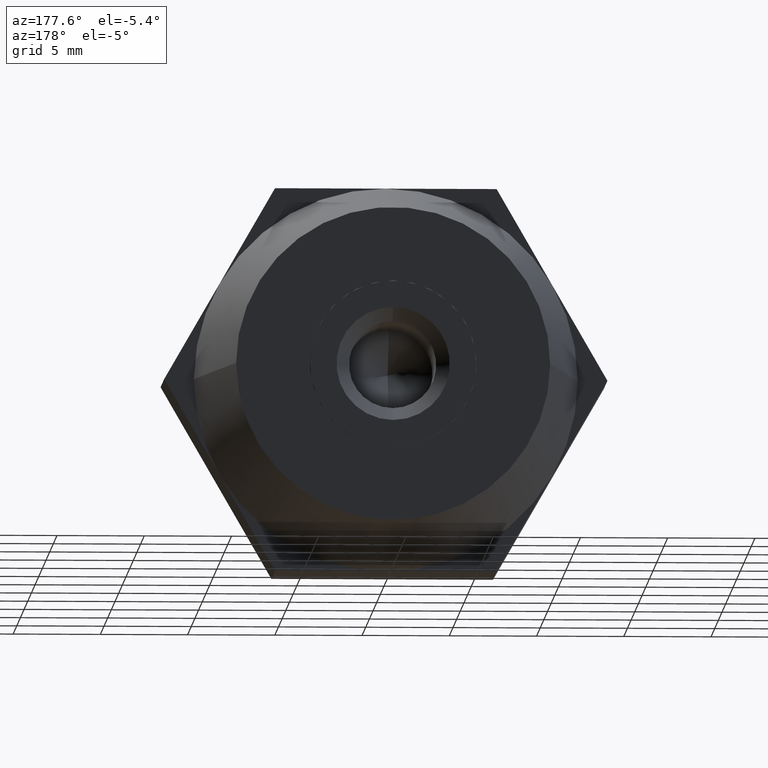
[diagram: clean part render]
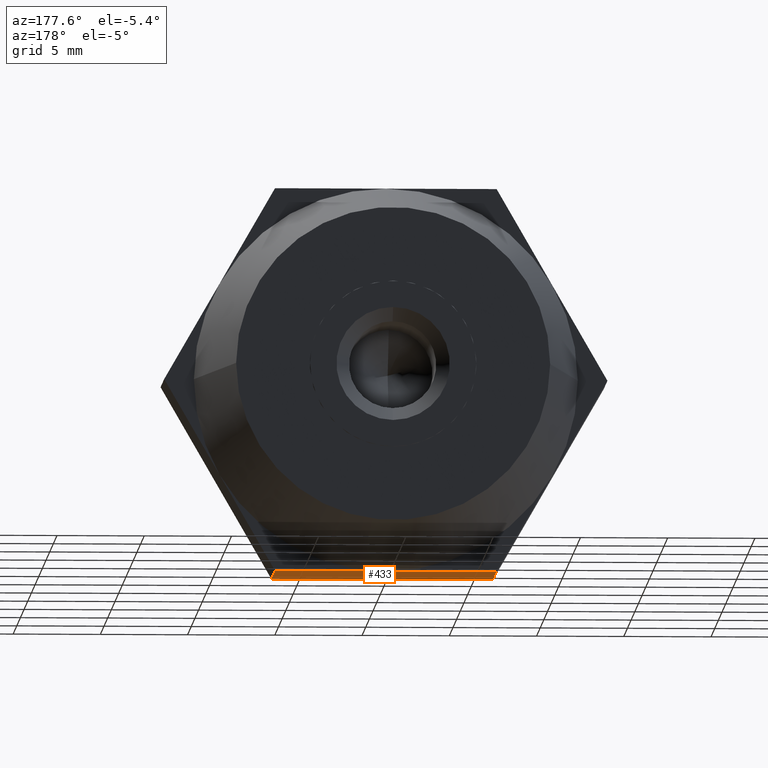
[diagram: same view with one face highlighted and labeled with its STEP entity id]
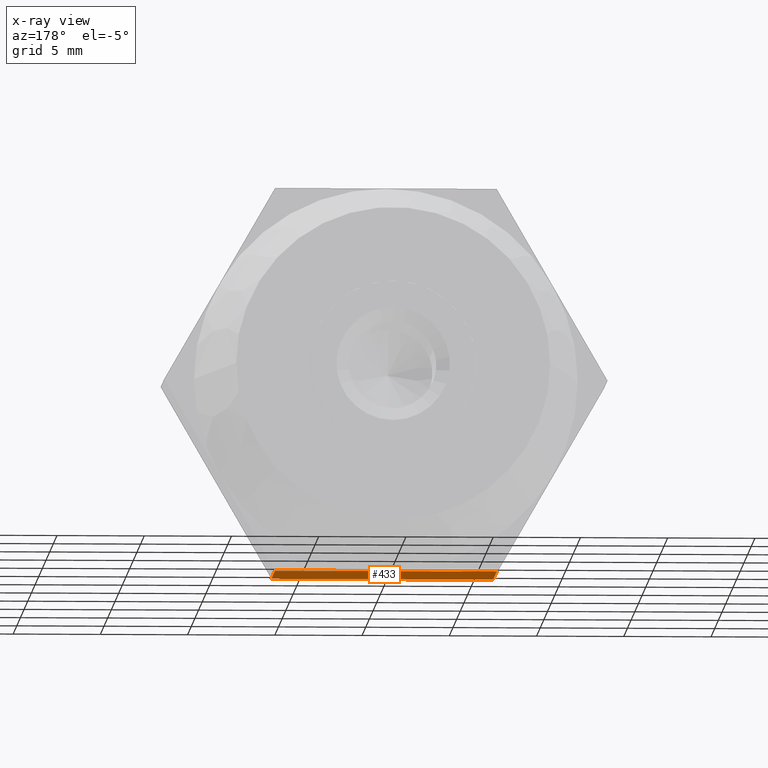
[diagram: x-ray of the same camera — body ghosted, the highlighted face saturated]
A machine part, auxiliary view. The second image highlights one B-rep face of the part: STEP entity #433.
The next image is the same camera in x-ray: the body ghosted, the highlighted face saturated — about 0% of this face is hidden behind the body in this view.
In plain terms, the highlighted planar face has unit normal (0, 0, 1).
Its self-contained STEP definition (entity closure, byte-faithful):
#147 = ORIENTED_EDGE ( 'NONE', *, *, #1886, .T. ) ;
#198 = VERTEX_POINT ( 'NONE', #1966 ) ;
#259 = VERTEX_POINT ( 'NONE', #3182 ) ;
#310 = EDGE_CURVE ( 'NONE', #1385, #1450, #2533, .T. ) ;
#408 = VERTEX_POINT ( 'NONE', #1746 ) ;
#433 = ADVANCED_FACE ( 'NONE', ( #3578 ), #1146, .F. ) ;
#639 = LINE ( 'NONE', #2296, #3765 ) ;
#667 = CARTESIAN_POINT ( 'NONE',  ( 6.350852961085879900, -2.500000000000000000, -11.00000000000000000 ) ) ;
#682 = EDGE_CURVE ( 'NONE', #259, #2449, #639, .T. ) ;
#766 = AXIS2_PLACEMENT_3D ( 'NONE', #2703, #1131, #3271 ) ;
#789 = DIRECTION ( 'NONE',  ( -1.000000000000000000, 0.0000000000000000000, 0.0000000000000000000 ) ) ;
#930 = DIRECTION ( 'NONE',  ( 0.0000000000000000000, -1.000000000000000000, 0.0000000000000000000 ) ) ;
#1000 = VECTOR ( 'NONE', #789, 1000.000000000000000 ) ;
#1018 = ORIENTED_EDGE ( 'NONE', *, *, #1063, .T. ) ;
#1063 = EDGE_CURVE ( 'NONE', #259, #198, #3392, .T. ) ;
#1131 = DIRECTION ( 'NONE',  ( 0.0000000000000000000, 0.0000000000000000000, 1.000000000000000000 ) ) ;
#1146 = PLANE ( 'NONE',  #766 ) ;
#1152 = CARTESIAN_POINT ( 'NONE',  ( 6.350852961085879900, 2.500000000000000000, -11.00000000000000000 ) ) ;
#1225 = LINE ( 'NONE', #1152, #1791 ) ;
#1342 = ORIENTED_EDGE ( 'NONE', *, *, #682, .F. ) ;
#1385 = VERTEX_POINT ( 'NONE', #1724 ) ;
#1417 = DIRECTION ( 'NONE',  ( 0.0000000000000000000, -1.000000000000000000, 0.0000000000000000000 ) ) ;
#1450 = VERTEX_POINT ( 'NONE', #2769 ) ;
#1474 = VECTOR ( 'NONE', #1839, 1000.000000000000000 ) ;
#1476 = LINE ( 'NONE', #2336, #1000 ) ;
#1646 = ORIENTED_EDGE ( 'NONE', *, *, #3321, .F. ) ;
#1724 = CARTESIAN_POINT ( 'NONE',  ( -6.350852961085879900, 2.500000000000000000, -11.00000000000000000 ) ) ;
#1738 = DIRECTION ( 'NONE',  ( -1.000000000000000000, 0.0000000000000000000, 0.0000000000000000000 ) ) ;
#1746 = CARTESIAN_POINT ( 'NONE',  ( 1.836970198721030000E-015, -2.500000000000000000, -11.00000000000000000 ) ) ;
#1791 = VECTOR ( 'NONE', #1738, 1000.000000000000000 ) ;
#1822 = ORIENTED_EDGE ( 'NONE', *, *, #2480, .T. ) ;
#1839 = DIRECTION ( 'NONE',  ( -1.000000000000000000, 0.0000000000000000000, 0.0000000000000000000 ) ) ;
#1886 = EDGE_CURVE ( 'NONE', #198, #408, #3883, .T. ) ;
#1966 = CARTESIAN_POINT ( 'NONE',  ( 6.350852961085879900, -2.500000000000000000, -11.00000000000000000 ) ) ;
#2205 = EDGE_LOOP ( 'NONE', ( #147, #1822, #2733, #1646, #1342, #1018 ) ) ;
#2257 = DIRECTION ( 'NONE',  ( -1.000000000000000000, 0.0000000000000000000, 0.0000000000000000000 ) ) ;
#2296 = CARTESIAN_POINT ( 'NONE',  ( 6.350852961085879900, 2.500000000000000000, -11.00000000000000000 ) ) ;
#2336 = CARTESIAN_POINT ( 'NONE',  ( 6.350852961085879900, -2.500000000000000000, -11.00000000000000000 ) ) ;
#2433 = VECTOR ( 'NONE', #930, 1000.000000000000000 ) ;
#2449 = VERTEX_POINT ( 'NONE', #3792 ) ;
#2478 = CARTESIAN_POINT ( 'NONE',  ( 6.350852961085879900, 2.500000000000000000, -11.00000000000000000 ) ) ;
#2480 = EDGE_CURVE ( 'NONE', #408, #1450, #1476, .T. ) ;
#2533 = LINE ( 'NONE', #3238, #2635 ) ;
#2635 = VECTOR ( 'NONE', #1417, 1000.000000000000000 ) ;
#2703 = CARTESIAN_POINT ( 'NONE',  ( 6.350852961085879900, 2.500000000000000000, -11.00000000000000000 ) ) ;
#2733 = ORIENTED_EDGE ( 'NONE', *, *, #310, .F. ) ;
#2769 = CARTESIAN_POINT ( 'NONE',  ( -6.350852961085879900, -2.500000000000000000, -11.00000000000000000 ) ) ;
#3182 = CARTESIAN_POINT ( 'NONE',  ( 6.350852961085879900, 2.500000000000000000, -11.00000000000000000 ) ) ;
#3238 = CARTESIAN_POINT ( 'NONE',  ( -6.350852961085879900, 2.500000000000000000, -11.00000000000000000 ) ) ;
#3271 = DIRECTION ( 'NONE',  ( 1.000000000000000000, 0.0000000000000000000, 0.0000000000000000000 ) ) ;
#3321 = EDGE_CURVE ( 'NONE', #2449, #1385, #1225, .T. ) ;
#3392 = LINE ( 'NONE', #2478, #2433 ) ;
#3578 = FACE_OUTER_BOUND ( 'NONE', #2205, .T. ) ;
#3765 = VECTOR ( 'NONE', #2257, 1000.000000000000000 ) ;
#3792 = CARTESIAN_POINT ( 'NONE',  ( -1.349783804395671800E-031, 2.500000000000000000, -11.00000000000000000 ) ) ;
#3883 = LINE ( 'NONE', #667, #1474 ) ;